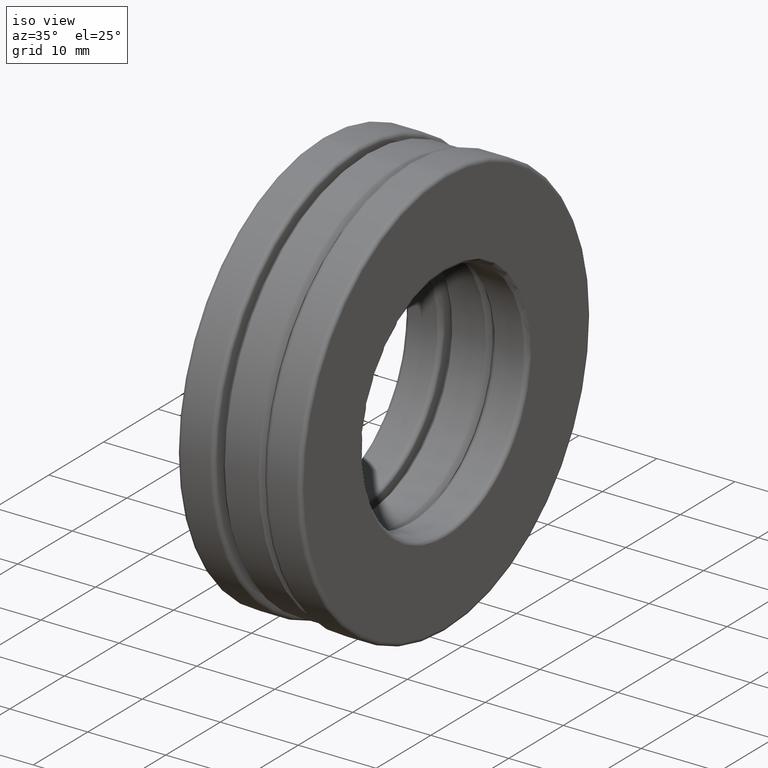
[diagram: clean part render]
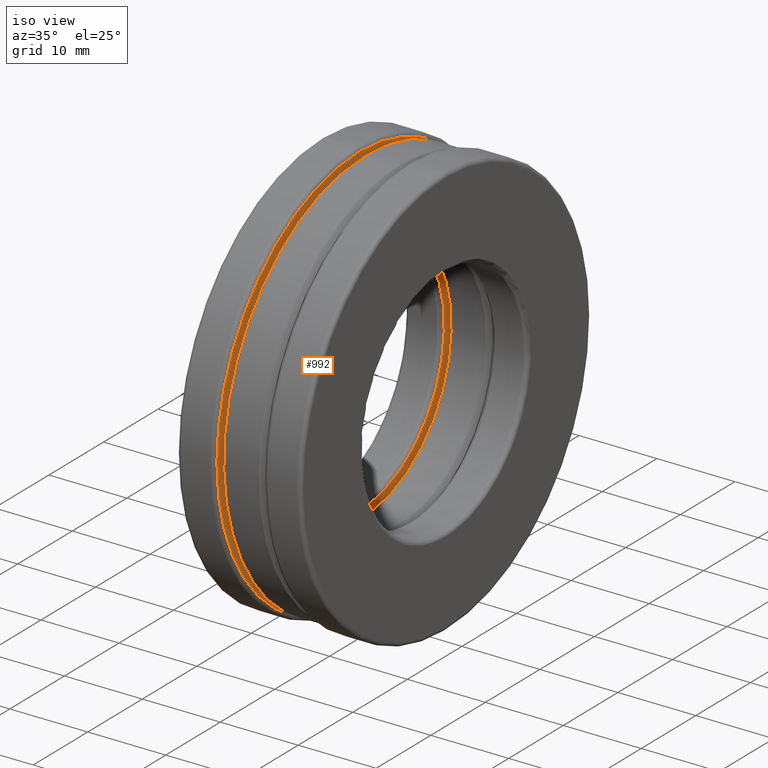
[diagram: same view with one face highlighted and labeled with its STEP entity id]
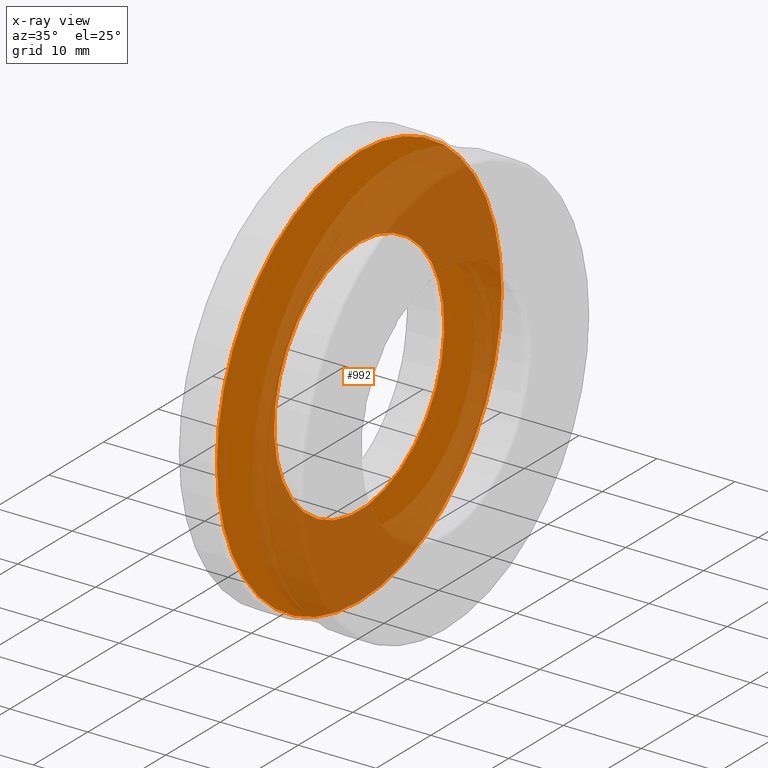
[diagram: x-ray of the same camera — body ghosted, the highlighted face saturated]
A machine part, iso view. The second image highlights one B-rep face of the part: STEP entity #992.
The next image is the same camera in x-ray: the body ghosted, the highlighted face saturated — about 59% of this face is hidden behind the body in this view.
In plain terms, the highlighted planar face has unit normal (1, 0, 0).
Its self-contained STEP definition (entity closure, byte-faithful):
#4 = AXIS2_PLACEMENT_3D ( 'NONE', #887, #768, #1350 ) ;
#33 = AXIS2_PLACEMENT_3D ( 'NONE', #463, #919, #1265 ) ;
#40 = DIRECTION ( 'NONE',  ( 0.0000000000000000000, 0.0000000000000000000, 1.000000000000000000 ) ) ;
#167 = ORIENTED_EDGE ( 'NONE', *, *, #822, .F. ) ;
#185 = EDGE_LOOP ( 'NONE', ( #167 ) ) ;
#251 = ORIENTED_EDGE ( 'NONE', *, *, #372, .T. ) ;
#371 = VERTEX_POINT ( 'NONE', #408 ) ;
#372 = EDGE_CURVE ( 'NONE', #1362, #1362, #1370, .T. ) ;
#408 = CARTESIAN_POINT ( 'NONE',  ( -0.1250000000000000600, 0.0000000000000000000, 1.026875000000000000 ) ) ;
#427 = FACE_BOUND ( 'NONE', #1380, .T. ) ;
#442 = PLANE ( 'NONE',  #33 ) ;
#463 = CARTESIAN_POINT ( 'NONE',  ( -0.1250000000000000600, 0.0000000000000000000, 0.0000000000000000000 ) ) ;
#492 = CARTESIAN_POINT ( 'NONE',  ( -0.1250000000000000600, 0.0000000000000000000, 0.0000000000000000000 ) ) ;
#616 = DIRECTION ( 'NONE',  ( -1.000000000000000000, -0.0000000000000000000, -0.0000000000000000000 ) ) ;
#683 = AXIS2_PLACEMENT_3D ( 'NONE', #492, #616, #40 ) ;
#768 = DIRECTION ( 'NONE',  ( -1.000000000000000000, -0.0000000000000000000, -0.0000000000000000000 ) ) ;
#822 = EDGE_CURVE ( 'NONE', #371, #371, #1071, .T. ) ;
#866 = CARTESIAN_POINT ( 'NONE',  ( -0.1250000000000000600, 0.0000000000000000000, 0.6137500000000000200 ) ) ;
#887 = CARTESIAN_POINT ( 'NONE',  ( -0.1250000000000000600, 0.0000000000000000000, 0.0000000000000000000 ) ) ;
#919 = DIRECTION ( 'NONE',  ( 1.000000000000000000, 0.0000000000000000000, 0.0000000000000000000 ) ) ;
#992 = ADVANCED_FACE ( 'NONE', ( #427, #1146 ), #442, .T. ) ;
#1071 = CIRCLE ( 'NONE', #4, 1.026875000000000000 ) ;
#1146 = FACE_OUTER_BOUND ( 'NONE', #185, .T. ) ;
#1265 = DIRECTION ( 'NONE',  ( 0.0000000000000000000, 0.0000000000000000000, -1.000000000000000000 ) ) ;
#1350 = DIRECTION ( 'NONE',  ( 0.0000000000000000000, 0.0000000000000000000, 1.000000000000000000 ) ) ;
#1362 = VERTEX_POINT ( 'NONE', #866 ) ;
#1370 = CIRCLE ( 'NONE', #683, 0.6137500000000000200 ) ;
#1380 = EDGE_LOOP ( 'NONE', ( #251 ) ) ;